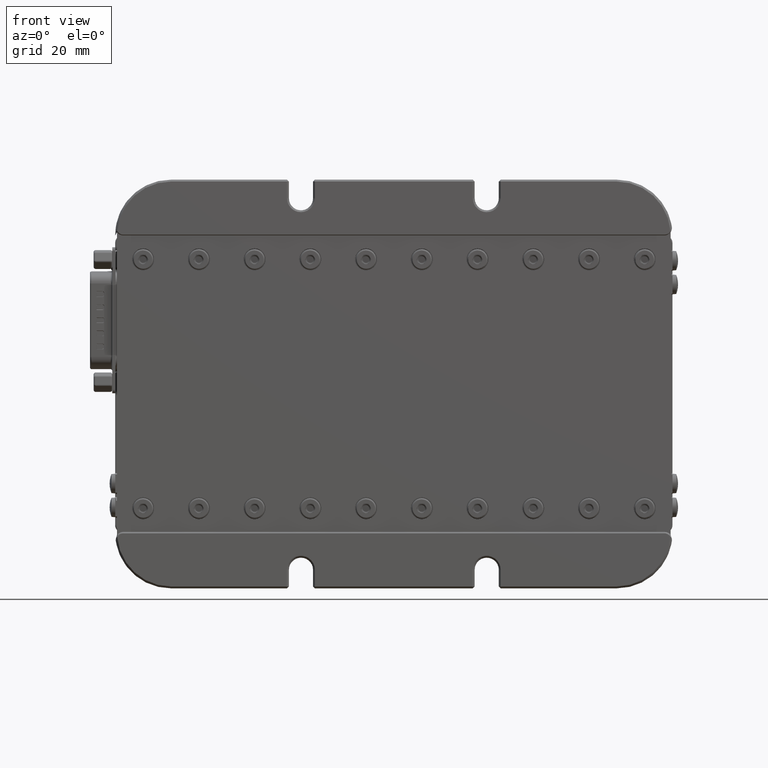
[diagram: clean part render]
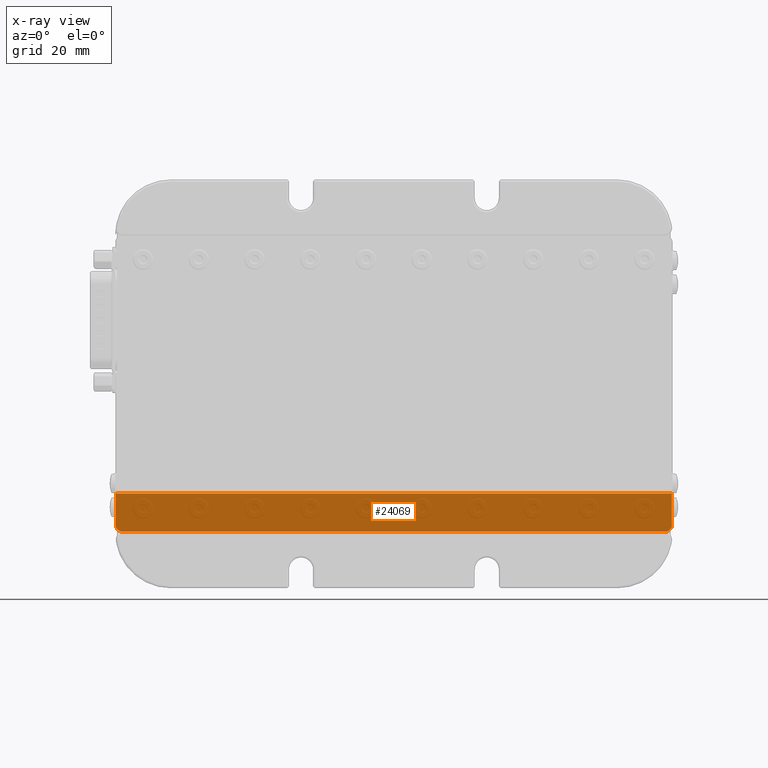
[diagram: x-ray — body ghosted, one internal face saturated and labeled with its STEP entity id]
A machine part, front view, then the same camera in x-ray: the body is ghosted and one INTERNAL B-rep face — a face not visible from any outside direction — is saturated and labeled: STEP entity #24069.
In plain terms, the highlighted planar face has unit normal (0, 1, 0).
Its self-contained STEP definition (entity closure, byte-faithful):
#1316 = ORIENTED_EDGE ( 'NONE', *, *, #35848, .F. ) ;
#1616 = CARTESIAN_POINT ( 'NONE',  ( 145.6980153580485100, 31.50000000000005000, 20.11789066043698800 ) ) ;
#2624 = VERTEX_POINT ( 'NONE', #1616 ) ;
#5070 = DIRECTION ( 'NONE',  ( 0.0000000000000000000, 1.000000000000000000, -0.0000000000000000000 ) ) ;
#7476 = CARTESIAN_POINT ( 'NONE',  ( 145.6980153580347200, 31.49999999998136200, 11.61789066043697500 ) ) ;
#7662 = CARTESIAN_POINT ( 'NONE',  ( 295.2980153579931700, 31.50000000005093200, 11.61789066043693500 ) ) ;
#7702 = CARTESIAN_POINT ( 'NONE',  ( 295.2980153580485900, 31.50000000000003600, 20.11789066043695200 ) ) ;
#9476 = CARTESIAN_POINT ( 'NONE',  ( 293.4980153580484600, 31.50000000005093200, 11.61789066043693300 ) ) ;
#10170 = CARTESIAN_POINT ( 'NONE',  ( 147.4980153580485200, 31.49999999993724500, 11.61789066043698400 ) ) ;
#11278 = EDGE_LOOP ( 'NONE', ( #61317, #1316, #18502, #11875, #34612, #51460 ) ) ;
#11875 = ORIENTED_EDGE ( 'NONE', *, *, #37697, .F. ) ;
#13202 = VERTEX_POINT ( 'NONE', #7476 ) ;
#13440 = VECTOR ( 'NONE', #53263, 1000.000000000000000 ) ;
#15116 = CARTESIAN_POINT ( 'NONE',  ( 145.6980153580485100, 31.50000000000005000, 49.61789066043698400 ) ) ;
#17549 = DIRECTION ( 'NONE',  ( 1.000000000000000000, -1.224646799147352700E-016, -1.499759782661863900E-032 ) ) ;
#18502 = ORIENTED_EDGE ( 'NONE', *, *, #36125, .F. ) ;
#18567 = CIRCLE ( 'NONE', #24649, 1.800000000008053800 ) ;
#18878 = DIRECTION ( 'NONE',  ( 1.224646799147352700E-016, 1.000000000000000000, 1.224646799147358900E-016 ) ) ;
#23161 = CIRCLE ( 'NONE', #32472, 1.799999999951160200 ) ;
#24069 = ADVANCED_FACE ( 'NONE', ( #57900 ), #48415, .F. ) ;
#24649 = AXIS2_PLACEMENT_3D ( 'NONE', #10170, #60133, #31479 ) ;
#25753 = LINE ( 'NONE', #62069, #35888 ) ;
#26645 = LINE ( 'NONE', #48893, #13440 ) ;
#28847 = CARTESIAN_POINT ( 'NONE',  ( 265.4980153580485200, 31.50000000000003600, 49.61789066043693500 ) ) ;
#31271 = CARTESIAN_POINT ( 'NONE',  ( 147.4980153580485200, 31.49999999998137000, 9.817890660420758300 ) ) ;
#31479 = DIRECTION ( 'NONE',  ( 0.0000000000000000000, 0.0000000000000000000, 1.000000000000000000 ) ) ;
#32472 = AXIS2_PLACEMENT_3D ( 'NONE', #9476, #5070, #54469 ) ;
#34612 = ORIENTED_EDGE ( 'NONE', *, *, #46112, .T. ) ;
#34823 = VERTEX_POINT ( 'NONE', #7662 ) ;
#35848 = EDGE_CURVE ( 'NONE', #2624, #58962, #25753, .T. ) ;
#35888 = VECTOR ( 'NONE', #17549, 1000.000000000000000 ) ;
#36125 = EDGE_CURVE ( 'NONE', #13202, #2624, #42843, .T. ) ;
#36911 = VERTEX_POINT ( 'NONE', #50662 ) ;
#37697 = EDGE_CURVE ( 'NONE', #59651, #13202, #18567, .T. ) ;
#38745 = EDGE_CURVE ( 'NONE', #34823, #58962, #53340, .T. ) ;
#39390 = AXIS2_PLACEMENT_3D ( 'NONE', #28847, #18878, #43900 ) ;
#42843 = LINE ( 'NONE', #15116, #52917 ) ;
#43040 = EDGE_CURVE ( 'NONE', #34823, #36911, #23161, .T. ) ;
#43900 = DIRECTION ( 'NONE',  ( 0.0000000000000000000, -1.224646799147358900E-016, 1.000000000000000000 ) ) ;
#44705 = DIRECTION ( 'NONE',  ( 1.053133626578634200E-016, 1.053133626578634000E-016, 1.000000000000000000 ) ) ;
#46112 = EDGE_CURVE ( 'NONE', #59651, #36911, #26645, .T. ) ;
#48415 = PLANE ( 'NONE',  #39390 ) ;
#48893 = CARTESIAN_POINT ( 'NONE',  ( 265.4980153580485200, 31.50000000000002800, 9.817890660436956900 ) ) ;
#50662 = CARTESIAN_POINT ( 'NONE',  ( 293.4980153580484600, 31.50000000002548000, 9.817890660411496400 ) ) ;
#51129 = DIRECTION ( 'NONE',  ( 2.277780425725992500E-016, -2.277780425725993500E-016, 1.000000000000000000 ) ) ;
#51460 = ORIENTED_EDGE ( 'NONE', *, *, #43040, .F. ) ;
#51773 = CARTESIAN_POINT ( 'NONE',  ( 295.2980153580485900, 31.50000000000004300, 49.61789066043692000 ) ) ;
#52917 = VECTOR ( 'NONE', #44705, 1000.000000000000000 ) ;
#53263 = DIRECTION ( 'NONE',  ( 1.000000000000000000, -2.277780425725989500E-016, -2.277780425725990000E-016 ) ) ;
#53340 = LINE ( 'NONE', #51773, #57254 ) ;
#54469 = DIRECTION ( 'NONE',  ( 0.0000000000000000000, 0.0000000000000000000, 1.000000000000000000 ) ) ;
#57254 = VECTOR ( 'NONE', #51129, 1000.000000000000000 ) ;
#57900 = FACE_OUTER_BOUND ( 'NONE', #11278, .T. ) ;
#58962 = VERTEX_POINT ( 'NONE', #7702 ) ;
#59651 = VERTEX_POINT ( 'NONE', #31271 ) ;
#60133 = DIRECTION ( 'NONE',  ( 0.0000000000000000000, 1.000000000000000000, -0.0000000000000000000 ) ) ;
#61317 = ORIENTED_EDGE ( 'NONE', *, *, #38745, .T. ) ;
#62069 = CARTESIAN_POINT ( 'NONE',  ( 265.4980153580485200, 31.50000000000004300, 20.11789066043698800 ) ) ;